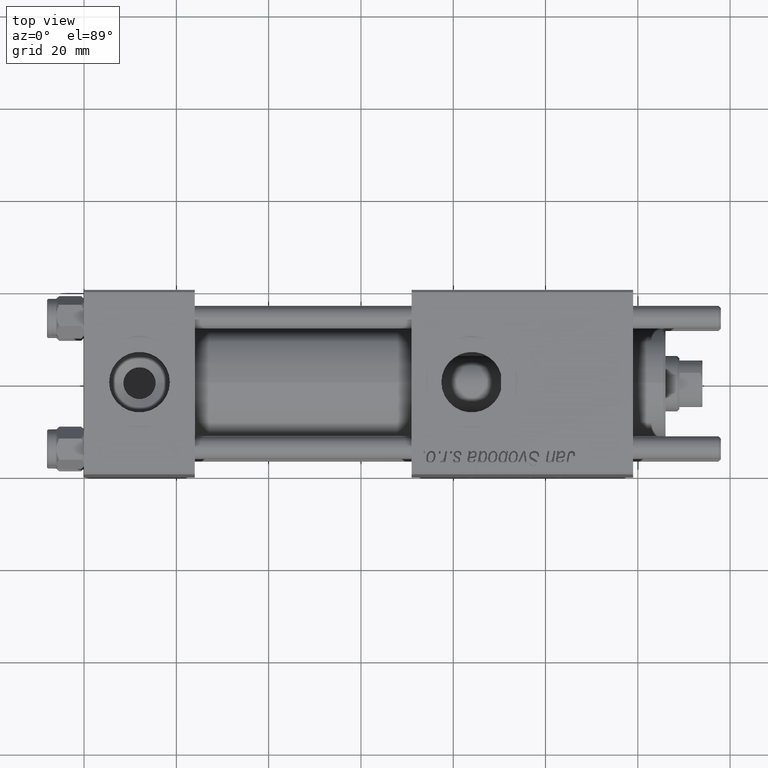
[diagram: clean part render]
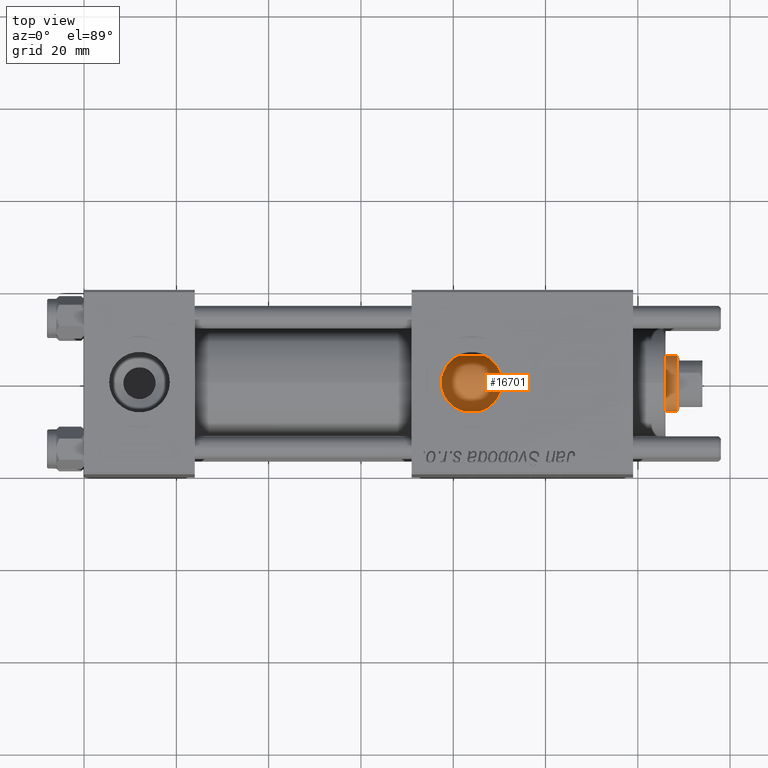
[diagram: same view with one face highlighted and labeled with its STEP entity id]
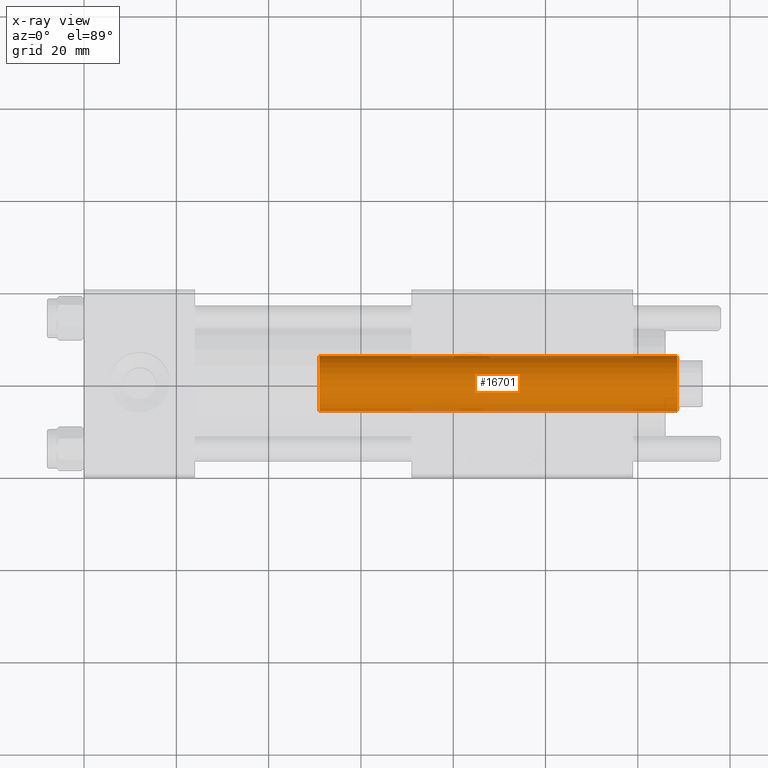
[diagram: x-ray of the same camera — body ghosted, the highlighted face saturated]
A machine part, top view. The second image highlights one B-rep face of the part: STEP entity #16701.
The next image is the same camera in x-ray: the body ghosted, the highlighted face saturated — about 5% of this face is hidden behind the body in this view.
In plain terms, the highlighted cylindrical surface (edge-blend (fillet) strip) has radius 6 mm, axis along (-1, 0, 0).
Its self-contained STEP definition (entity closure, byte-faithful):
#1665 = DIRECTION ( 'NONE',  ( -1.000000000000000000, 0.000000000000000000, 0.000000000000000000 ) ) ;
#2698 = VERTEX_POINT ( 'NONE', #49744 ) ;
#6107 = CYLINDRICAL_SURFACE ( 'NONE', #41058, 6.000000000000000888 ) ;
#7549 = DIRECTION ( 'NONE',  ( 1.000000000000000000, 0.000000000000000000, 0.000000000000000000 ) ) ;
#9225 = LINE ( 'NONE', #10106, #25285 ) ;
#9717 = EDGE_CURVE ( 'NONE', #17222, #2698, #44832, .T. ) ;
#10084 = EDGE_LOOP ( 'NONE', ( #13575, #55169, #24507, #42797 ) ) ;
#10106 = CARTESIAN_POINT ( 'NONE',  ( -6.000000000000000888, 0.000000000000000000, 105.0000000000000000 ) ) ;
#10188 = CARTESIAN_POINT ( 'NONE',  ( -6.000000000000000888, 0.000000000000000000, 27.00000000000000000 ) ) ;
#10705 = VECTOR ( 'NONE', #18148, 1000.000000000000000 ) ;
#12272 = DIRECTION ( 'NONE',  ( 0.000000000000000000, 0.000000000000000000, 1.000000000000000000 ) ) ;
#12535 = CARTESIAN_POINT ( 'NONE',  ( 6.000000000000000888, 7.347880794884120722E-16, 105.0000000000000000 ) ) ;
#12679 = DIRECTION ( 'NONE',  ( 1.000000000000000000, 0.000000000000000000, 0.000000000000000000 ) ) ;
#13390 = VERTEX_POINT ( 'NONE', #10188 ) ;
#13575 = ORIENTED_EDGE ( 'NONE', *, *, #9717, .F. ) ;
#16701 = ADVANCED_FACE ( 'NONE', ( #28627 ), #6107, .T. ) ;
#17222 = VERTEX_POINT ( 'NONE', #22139 ) ;
#18148 = DIRECTION ( 'NONE',  ( -0.000000000000000000, -0.000000000000000000, -1.000000000000000000 ) ) ;
#21574 = CARTESIAN_POINT ( 'NONE',  ( 0.000000000000000000, 0.000000000000000000, 104.5000000000000142 ) ) ;
#21748 = CARTESIAN_POINT ( 'NONE',  ( 0.000000000000000000, 0.000000000000000000, 27.00000000000000000 ) ) ;
#22139 = CARTESIAN_POINT ( 'NONE',  ( 6.000000000000000888, 7.347880794884120722E-16, 104.5000000000000142 ) ) ;
#24177 = CARTESIAN_POINT ( 'NONE',  ( 0.000000000000000000, 0.000000000000000000, 105.0000000000000000 ) ) ;
#24507 = ORIENTED_EDGE ( 'NONE', *, *, #51640, .T. ) ;
#25285 = VECTOR ( 'NONE', #37052, 1000.000000000000000 ) ;
#26440 = EDGE_CURVE ( 'NONE', #13390, #2698, #33334, .T. ) ;
#28627 = FACE_OUTER_BOUND ( 'NONE', #10084, .T. ) ;
#33334 = CIRCLE ( 'NONE', #38065, 6.000000000000000888 ) ;
#34490 = EDGE_CURVE ( 'NONE', #17222, #54954, #41030, .T. ) ;
#37052 = DIRECTION ( 'NONE',  ( -0.000000000000000000, -0.000000000000000000, -1.000000000000000000 ) ) ;
#38065 = AXIS2_PLACEMENT_3D ( 'NONE', #21748, #12272, #7549 ) ;
#41030 = CIRCLE ( 'NONE', #46701, 6.000000000000000888 ) ;
#41058 = AXIS2_PLACEMENT_3D ( 'NONE', #24177, #42254, #1665 ) ;
#42254 = DIRECTION ( 'NONE',  ( -0.000000000000000000, -0.000000000000000000, -1.000000000000000000 ) ) ;
#42797 = ORIENTED_EDGE ( 'NONE', *, *, #26440, .T. ) ;
#44832 = LINE ( 'NONE', #12535, #10705 ) ;
#46701 = AXIS2_PLACEMENT_3D ( 'NONE', #21574, #53266, #12679 ) ;
#49744 = CARTESIAN_POINT ( 'NONE',  ( 6.000000000000000888, 7.347880794884120722E-16, 27.00000000000000000 ) ) ;
#51640 = EDGE_CURVE ( 'NONE', #54954, #13390, #9225, .T. ) ;
#51819 = CARTESIAN_POINT ( 'NONE',  ( -6.000000000000000888, 0.000000000000000000, 104.5000000000000142 ) ) ;
#53266 = DIRECTION ( 'NONE',  ( 0.000000000000000000, 0.000000000000000000, -1.000000000000000000 ) ) ;
#54954 = VERTEX_POINT ( 'NONE', #51819 ) ;
#55169 = ORIENTED_EDGE ( 'NONE', *, *, #34490, .T. ) ;